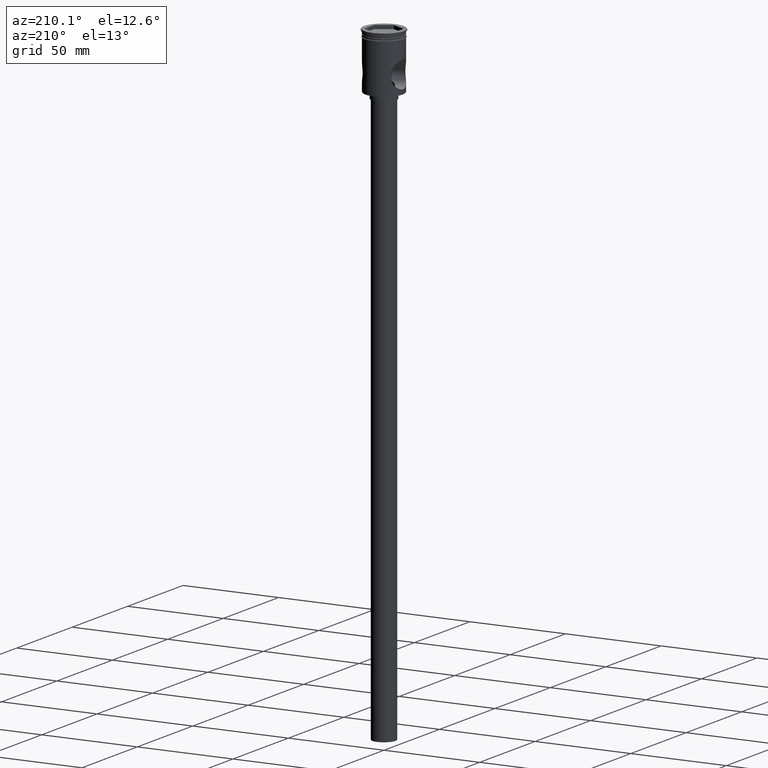
[diagram: clean part render]
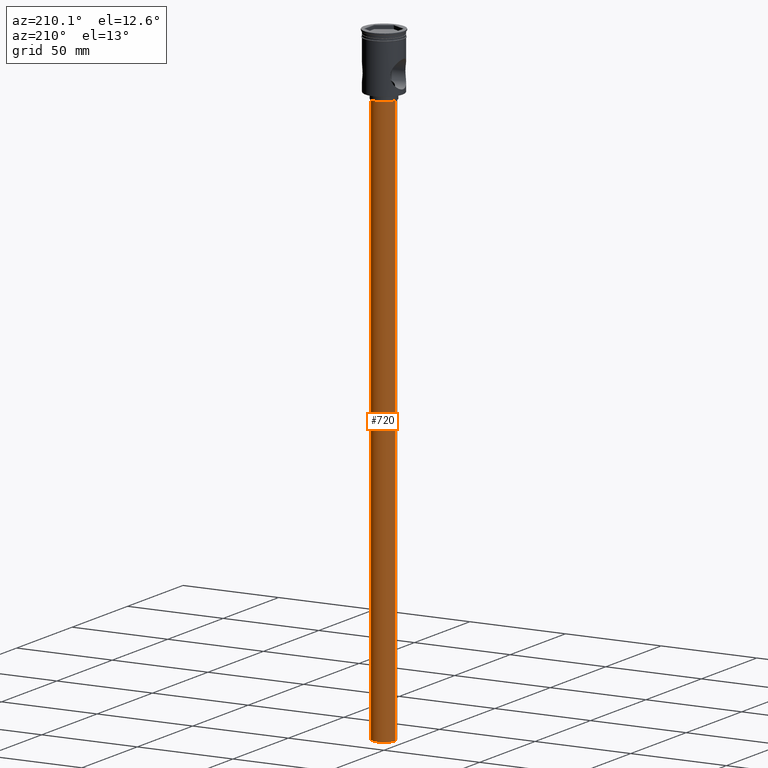
[diagram: same view with one face highlighted and labeled with its STEP entity id]
A machine part, auxiliary view. The second image highlights one B-rep face of the part: STEP entity #720.
In plain terms, the highlighted cylindrical surface (edge-blend (fillet) strip) has radius 6 mm, axis along (-0, -0, 1).
Its self-contained STEP definition (entity closure, byte-faithful):
#10 = CARTESIAN_POINT ( 'NONE',  ( 0.000000000000000000, 0.000000000000000000, -32.50000000000000000 ) ) ;
#14 = DIRECTION ( 'NONE',  ( -0.000000000000000000, -0.000000000000000000, 1.000000000000000000 ) ) ;
#20 = DIRECTION ( 'NONE',  ( -0.000000000000000000, -0.000000000000000000, 1.000000000000000000 ) ) ;
#30 = VECTOR ( 'NONE', #1244, 1000.000000000000000 ) ;
#40 = CARTESIAN_POINT ( 'NONE',  ( 0.000000000000000000, 0.000000000000000000, -329.5000000000000000 ) ) ;
#51 = EDGE_CURVE ( 'NONE', #97, #506, #974, .T. ) ;
#97 = VERTEX_POINT ( 'NONE', #424 ) ;
#130 = CYLINDRICAL_SURFACE ( 'NONE', #1241, 6.000000000000000888 ) ;
#150 = CARTESIAN_POINT ( 'NONE',  ( 6.000000000000000888, 0.000000000000000000, -32.50000000000000000 ) ) ;
#173 = CARTESIAN_POINT ( 'NONE',  ( -6.000000000000000888, 7.347880794884120722E-16, -32.50000000000000000 ) ) ;
#185 = ORIENTED_EDGE ( 'NONE', *, *, #689, .F. ) ;
#287 = LINE ( 'NONE', #295, #30 ) ;
#289 = DIRECTION ( 'NONE',  ( -1.000000000000000000, 0.000000000000000000, 0.000000000000000000 ) ) ;
#295 = CARTESIAN_POINT ( 'NONE',  ( -6.000000000000000888, 7.347880794884120722E-16, -329.5000000000000000 ) ) ;
#352 = AXIS2_PLACEMENT_3D ( 'NONE', #10, #479, #446 ) ;
#387 = CARTESIAN_POINT ( 'NONE',  ( 6.000000000000000888, 0.000000000000000000, -329.5000000000000000 ) ) ;
#424 = CARTESIAN_POINT ( 'NONE',  ( -6.000000000000000888, 7.347880794884120722E-16, -329.5000000000000000 ) ) ;
#446 = DIRECTION ( 'NONE',  ( -1.000000000000000000, 0.000000000000000000, 0.000000000000000000 ) ) ;
#479 = DIRECTION ( 'NONE',  ( 0.000000000000000000, 0.000000000000000000, -1.000000000000000000 ) ) ;
#482 = CARTESIAN_POINT ( 'NONE',  ( 0.000000000000000000, 0.000000000000000000, -329.5000000000000000 ) ) ;
#486 = EDGE_CURVE ( 'NONE', #97, #536, #287, .T. ) ;
#506 = VERTEX_POINT ( 'NONE', #387 ) ;
#509 = DIRECTION ( 'NONE',  ( 0.000000000000000000, 0.000000000000000000, -1.000000000000000000 ) ) ;
#512 = ORIENTED_EDGE ( 'NONE', *, *, #51, .F. ) ;
#536 = VERTEX_POINT ( 'NONE', #173 ) ;
#542 = ORIENTED_EDGE ( 'NONE', *, *, #486, .T. ) ;
#689 = EDGE_CURVE ( 'NONE', #506, #727, #969, .T. ) ;
#720 = ADVANCED_FACE ( 'NONE', ( #1190 ), #130, .T. ) ;
#727 = VERTEX_POINT ( 'NONE', #150 ) ;
#798 = AXIS2_PLACEMENT_3D ( 'NONE', #40, #509, #289 ) ;
#963 = DIRECTION ( 'NONE',  ( 1.000000000000000000, 0.000000000000000000, 0.000000000000000000 ) ) ;
#969 = LINE ( 'NONE', #1301, #1294 ) ;
#974 = CIRCLE ( 'NONE', #798, 6.000000000000000888 ) ;
#1026 = CIRCLE ( 'NONE', #352, 6.000000000000000888 ) ;
#1084 = ORIENTED_EDGE ( 'NONE', *, *, #1323, .T. ) ;
#1190 = FACE_OUTER_BOUND ( 'NONE', #1349, .T. ) ;
#1241 = AXIS2_PLACEMENT_3D ( 'NONE', #482, #14, #963 ) ;
#1244 = DIRECTION ( 'NONE',  ( -0.000000000000000000, -0.000000000000000000, 1.000000000000000000 ) ) ;
#1294 = VECTOR ( 'NONE', #20, 1000.000000000000000 ) ;
#1301 = CARTESIAN_POINT ( 'NONE',  ( 6.000000000000000888, 0.000000000000000000, -329.5000000000000000 ) ) ;
#1323 = EDGE_CURVE ( 'NONE', #536, #727, #1026, .T. ) ;
#1349 = EDGE_LOOP ( 'NONE', ( #512, #542, #1084, #185 ) ) ;